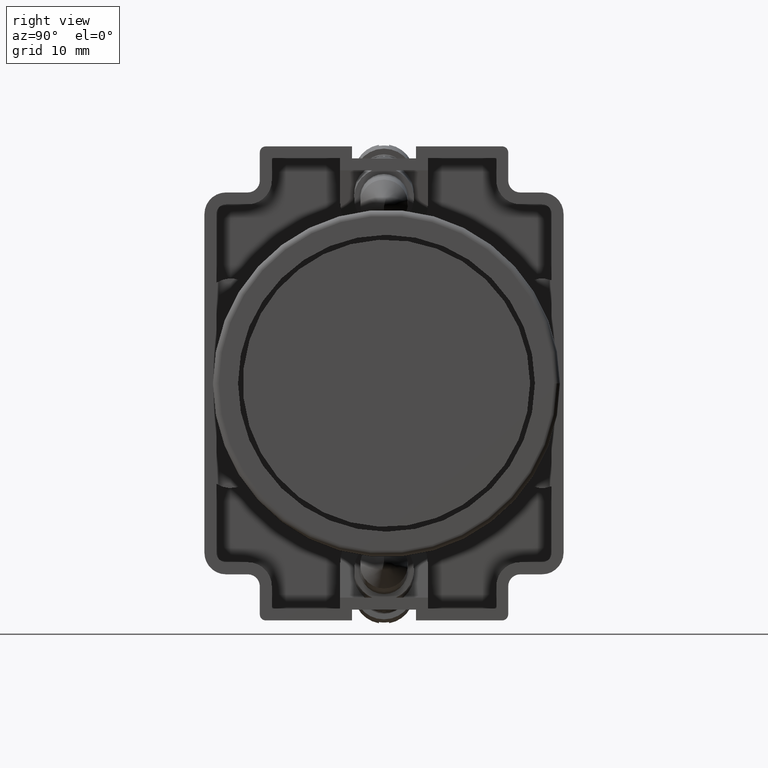
[diagram: clean part render]
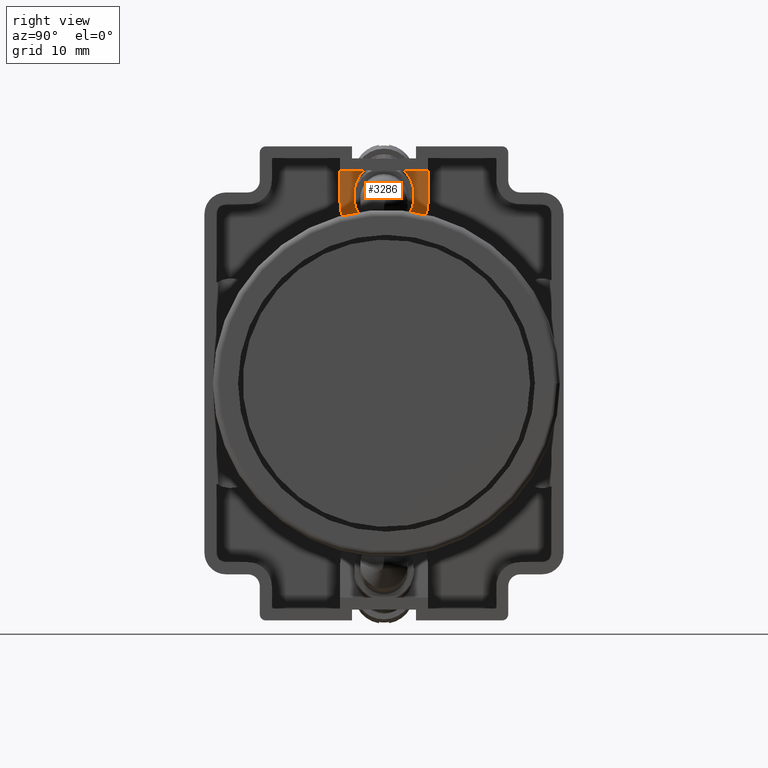
[diagram: same view with one face highlighted and labeled with its STEP entity id]
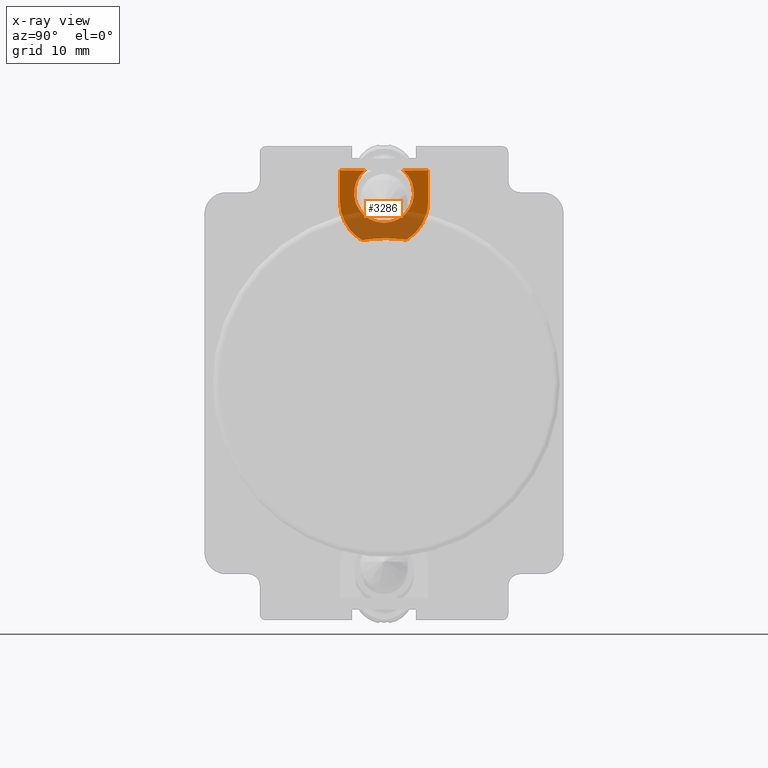
[diagram: x-ray of the same camera — body ghosted, the highlighted face saturated]
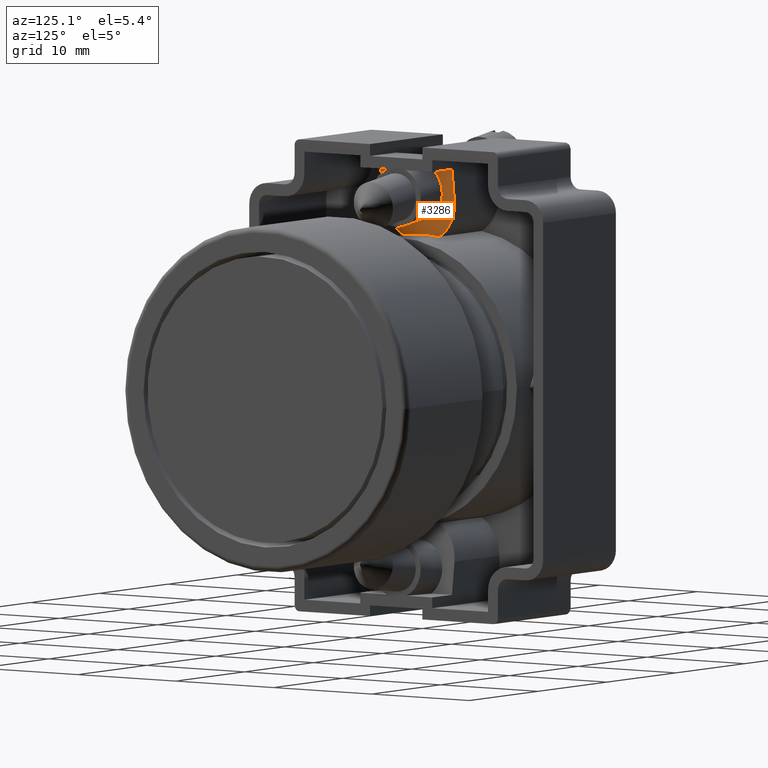
[diagram: same view with one face highlighted and labeled with its STEP entity id]
A machine part, right view. The second image highlights one B-rep face of the part: STEP entity #3286.
The next image is the same camera in x-ray: the body ghosted, the highlighted face saturated — about 51% of this face is hidden behind the body in this view.
A second angle (auxiliary view) of the same face is appended — the face is thin or edge-on in the first view.
In plain terms, the highlighted face is a freeform B-spline surface patch.
Its self-contained STEP definition (entity closure, byte-faithful):
#3211=CARTESIAN_POINT('',(18.617219691723893,13.817864828157568,2.873023537007241));
#3212=CARTESIAN_POINT('',(12.773175336931434,13.817864828157568,3.642406572327190));
#3213=CARTESIAN_POINT('',(18.617219691723893,6.467864828157540,2.873023537007241));
#3214=CARTESIAN_POINT('',(12.773175336931434,6.467864828157541,3.642406572327189));
#3215=B_SPLINE_SURFACE_WITH_KNOTS('',1,1,((#3211,#3213),(#3212,#3214)),.UNSPECIFIED.,.F.,.F.,.U.,(2,2),(2,2),(0.0,5.894472383158627),(0.0,7.350000000000027),.UNSPECIFIED.);
#3216=CARTESIAN_POINT('',(12.822269763913567,12.044157796525630,3.635943168397369));
#3217=VERTEX_POINT('',#3216);
#3218=CARTESIAN_POINT('',(12.773175336931434,8.325254952629118,3.642406572327189));
#3219=VERTEX_POINT('',#3218);
#3220=CARTESIAN_POINT('',(0.817219691723891,10.342864828157554,5.216437994062887));
#3221=DIRECTION('',(-0.130526192220052,2.120064E-030,-0.991444861373810));
#3222=DIRECTION('',(-0.991444861373810,4.539072E-016,0.130526192220052));
#3223=AXIS2_PLACEMENT_3D('',#3220,#3221,#3222);
#3224=ELLIPSE('',#3223,12.229626147034352,12.125000000000002);
#3225=EDGE_CURVE('',#3217,#3219,#3224,.T.);
#3226=ORIENTED_EDGE('',*,*,#3225,.F.);
#3227=CARTESIAN_POINT('',(15.967219691723900,13.817864828157555,3.221902655613839));
#3228=VERTEX_POINT('',#3227);
#3229=CARTESIAN_POINT('',(15.967219691723900,10.142864828157554,3.221902655613839));
#3230=DIRECTION('',(-0.130526192220052,2.116732E-030,-0.991444861373810));
#3231=DIRECTION('',(0.991444861373810,0.0,-0.130526192220052));
#3232=AXIS2_PLACEMENT_3D('',#3229,#3230,#3231);
#3233=ELLIPSE('',#3232,3.706711430132075,3.675000000000014);
#3234=EDGE_CURVE('',#3217,#3228,#3233,.T.);
#3235=ORIENTED_EDGE('',*,*,#3234,.T.);
#3236=CARTESIAN_POINT('',(18.617219691723896,13.817864828157555,2.873023537007240));
#3237=VERTEX_POINT('',#3236);
#3238=CARTESIAN_POINT('',(15.967219691723900,13.817864828157555,3.221902655613839));
#3239=DIRECTION('',(0.991444861373810,0.0,-0.130526192220052));
#3240=VECTOR('',#3239,2.672866745537402);
#3241=LINE('',#3238,#3240);
#3242=EDGE_CURVE('',#3228,#3237,#3241,.T.);
#3243=ORIENTED_EDGE('',*,*,#3242,.T.);
#3244=CARTESIAN_POINT('',(18.617219691723896,11.740356761193887,2.873023537007240));
#3245=VERTEX_POINT('',#3244);
#3246=CARTESIAN_POINT('',(18.617219691723896,11.740356761193887,2.873023537007240));
#3247=DIRECTION('',(0.0,1.0,0.0));
#3248=VECTOR('',#3247,2.077508066963668);
#3249=LINE('',#3246,#3248);
#3250=EDGE_CURVE('',#3237,#3245,#3249,.F.);
#3251=ORIENTED_EDGE('',*,*,#3250,.T.);
#3252=CARTESIAN_POINT('',(18.617219691723896,8.545372895121222,2.873023537007240));
#3253=VERTEX_POINT('',#3252);
#3254=CARTESIAN_POINT('',(16.710647887657178,10.142864828157554,3.124028476842331));
#3255=DIRECTION('',(-0.130526192220052,0.0,-0.991444861373810));
#3256=DIRECTION('',(0.0,1.0,0.0));
#3257=AXIS2_PLACEMENT_3D('',#3254,#3255,#3256);
#3258=CIRCLE('',#3257,2.500000000000000);
#3259=EDGE_CURVE('',#3253,#3245,#3258,.T.);
#3260=ORIENTED_EDGE('',*,*,#3259,.F.);
#3261=CARTESIAN_POINT('',(18.617219691723896,6.467864828157555,2.873023537007240));
#3262=VERTEX_POINT('',#3261);
#3263=CARTESIAN_POINT('',(18.617219691723896,6.467864828157555,2.873023537007240));
#3264=DIRECTION('',(0.0,1.0,0.0));
#3265=VECTOR('',#3264,2.077508066963667);
#3266=LINE('',#3263,#3265);
#3267=EDGE_CURVE('',#3253,#3262,#3266,.F.);
#3268=ORIENTED_EDGE('',*,*,#3267,.T.);
#3269=CARTESIAN_POINT('',(15.967219691723900,6.467864828157554,3.221902655613839));
#3270=VERTEX_POINT('',#3269);
#3271=CARTESIAN_POINT('',(18.617219691723896,6.467864828157555,2.873023537007240));
#3272=DIRECTION('',(-0.991444861373810,-3.322943E-016,0.130526192220052));
#3273=VECTOR('',#3272,2.672866745537402);
#3274=LINE('',#3271,#3273);
#3275=EDGE_CURVE('',#3262,#3270,#3274,.T.);
#3276=ORIENTED_EDGE('',*,*,#3275,.T.);
#3277=CARTESIAN_POINT('',(15.967219691723900,10.142864828157554,3.221902655613839));
#3278=DIRECTION('',(-0.130526192220052,2.116732E-030,-0.991444861373810));
#3279=DIRECTION('',(0.991444861373810,0.0,-0.130526192220052));
#3280=AXIS2_PLACEMENT_3D('',#3277,#3278,#3279);
#3281=ELLIPSE('',#3280,3.706711430132075,3.675000000000014);
#3282=EDGE_CURVE('',#3270,#3219,#3281,.T.);
#3283=ORIENTED_EDGE('',*,*,#3282,.T.);
#3284=EDGE_LOOP('',(#3226,#3235,#3243,#3251,#3260,#3268,#3276,#3283));
#3285=FACE_OUTER_BOUND('',#3284,.T.);
#3286=ADVANCED_FACE('',(#3285),#3215,.F.);